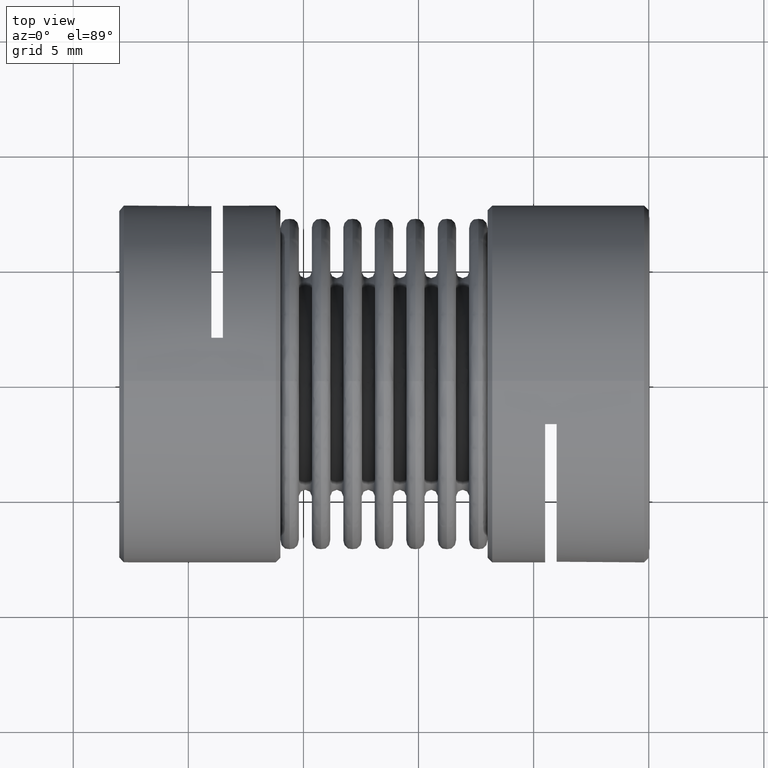
[diagram: clean part render]
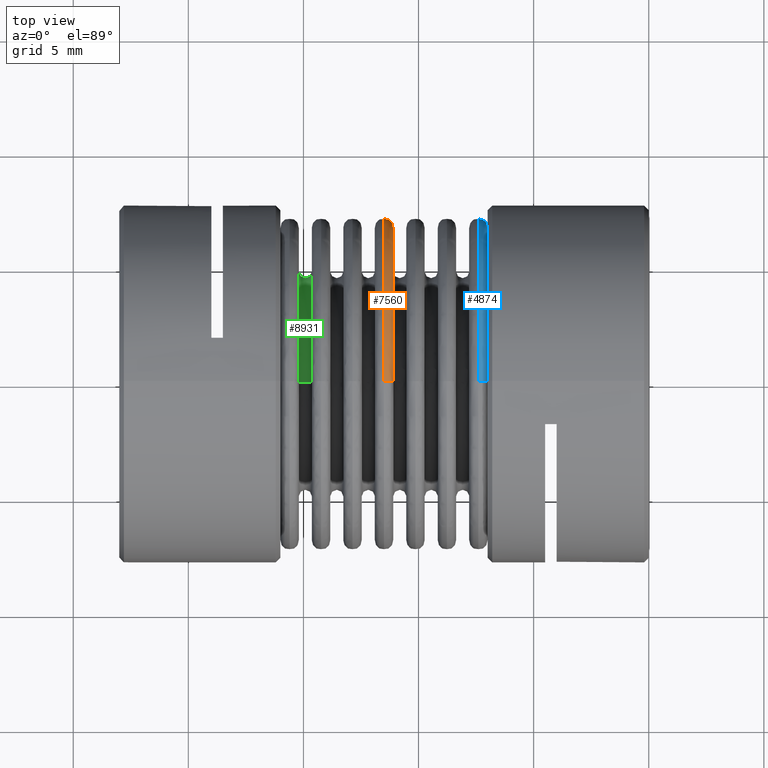
[diagram: same view with three faces highlighted in distinct colors, each labeled with its STEP entity id]
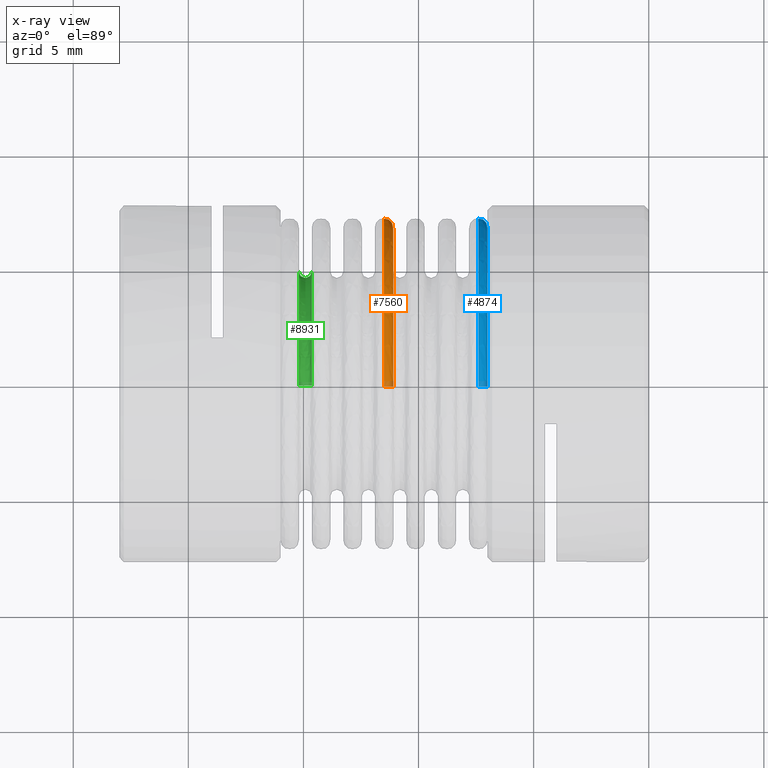
[diagram: x-ray of the same camera — body ghosted, the three highlighted faces saturated]
A machine part, top view with three faces highlighted in distinct colors.
The next image is the same camera in x-ray (body ghosted, the three faces saturated) — at least one of them is partly hidden behind the body in this view.
Their STEP definitions:

[orange] entity #7560 — the highlighted face is a freeform B-spline surface patch.
#38 = CARTESIAN_POINT ( 'NONE',  ( -0.4527539370078742520, -1.256644613389574834E-17, 7.020860603768392969E-18 ) ) ;
#329 = CARTESIAN_POINT ( 'NONE',  ( -0.4527539370078742520, -3.361956691537132732E-17, 0.2834645669262251810 ) ) ;
#712 = CARTESIAN_POINT ( 'NONE',  ( -0.4527539370078742520, 4.010287664571146475E-17, -0.2677165354301622169 ) ) ;
#763 = ORIENTED_EDGE ( 'NONE', *, *, #789, .T. ) ;
#789 = EDGE_CURVE ( 'NONE', #19010, #1057, #12129, .T. ) ;
#1057 = VERTEX_POINT ( 'NONE', #20221 ) ;
#1466 = EDGE_LOOP ( 'NONE', ( #14479, #1827, #11078, #763 ) ) ;
#1581 = CARTESIAN_POINT ( 'NONE',  ( -0.4370059055118112878, 4.053997232484080107E-17, -0.2677165354308893574 ) ) ;
#1827 = ORIENTED_EDGE ( 'NONE', *, *, #10801, .F. ) ;
#1831 = VERTEX_POINT ( 'NONE', #11643 ) ;
#1894 = CARTESIAN_POINT ( 'NONE',  ( -0.4527539370078742520, 0.5669291338524502510, -0.2834645669262251255 ) ) ;
#2006 = CARTESIAN_POINT ( 'NONE',  ( -0.4370059055118112878, -3.201285341525557003E-17, 0.2677165354311802359 ) ) ;
#3281 = DIRECTION ( 'NONE',  ( 0.0000000000000000000, -7.427073164652319051E-17, 1.000000000000000000 ) ) ;
#3537 = VERTEX_POINT ( 'NONE', #15171 ) ;
#3851 = DIRECTION ( 'NONE',  ( 0.0000000000000000000, 1.967354115612585605E-16, -1.000000000000000000 ) ) ;
#3882 = AXIS2_PLACEMENT_3D ( 'NONE', #10762, #9279, #17191 ) ;
#4071 = CIRCLE ( 'NONE', #13134, 0.2834645669262251810 ) ;
#4860 = DIRECTION ( 'NONE',  ( -1.000000000000000000, -2.775557561562892584E-17, 1.550701171185240690E-17 ) ) ;
#5048 = CARTESIAN_POINT ( 'NONE',  ( -0.4370059055122372249, 4.235485320497565093E-17, -0.2769415187002666756 ) ) ;
#5485 = EDGE_CURVE ( 'NONE', #3537, #1057, #14724, .T. ) ;
#6617 = CARTESIAN_POINT ( 'NONE',  ( -0.4435289537384969338, 4.345711682405517448E-17, -0.2834645669262251810 ) ) ;
#7560 = ADVANCED_FACE ( 'NONE', ( #17368 ), #17556, .T. ) ;
#7985 = CARTESIAN_POINT ( 'NONE',  ( -0.4370059055118112878, 0.5354330708617786039, -0.2677165354308893019 ) ) ;
#7991 = CARTESIAN_POINT ( 'NONE',  ( -0.4370059055118112878, -3.201285341525557003E-17, 0.2677165354311802359 ) ) ;
#8089 = CARTESIAN_POINT ( 'NONE',  ( -0.4435289537384969338, 0.5669291338524503621, -0.2834645669262251255 ) ) ;
#8203 = AXIS2_PLACEMENT_3D ( 'NONE', #712, #13534, #3851 ) ;
#9279 = DIRECTION ( 'NONE',  ( -2.775557561562892584E-17, 1.000000000000000000, 7.427073164652317819E-17 ) ) ;
#9566 = CARTESIAN_POINT ( 'NONE',  ( -0.4370059055118112878, 0.5354330708617787149, -0.2677165354308892464 ) ) ;
#9716 = EDGE_CURVE ( 'NONE', #1831, #19010, #14964, .T. ) ;
#10762 = CARTESIAN_POINT ( 'NONE',  ( -0.4527539370078742520, -3.244994909416624397E-17, 0.2677165354301622169 ) ) ;
#10801 = EDGE_CURVE ( 'NONE', #1831, #3537, #4071, .T. ) ;
#11078 = ORIENTED_EDGE ( 'NONE', *, *, #9716, .T. ) ;
#11643 = CARTESIAN_POINT ( 'NONE',  ( -0.4527539370078742520, -3.361956691537132732E-17, 0.2834645669262251810 ) ) ;
#12129 =( BOUNDED_CURVE ( )  B_SPLINE_CURVE ( 3, ( #7991, #17677, #9566, #14402 ),
 .UNSPECIFIED., .F., .F. ) 
 B_SPLINE_CURVE_WITH_KNOTS ( ( 4, 4 ),
 ( 0.0000000000000000000, 1.000000000000000000 ),
 .UNSPECIFIED. ) 
 CURVE ( )  GEOMETRIC_REPRESENTATION_ITEM ( )  RATIONAL_B_SPLINE_CURVE ( ( 1.000000000000000000, 0.3333333333333333703, 0.3333333333333333703, 1.000000000000000000 ) ) 
 REPRESENTATION_ITEM ( '' )  );
#12927 = CARTESIAN_POINT ( 'NONE',  ( -0.4370059055118112878, 0.5354330708617786039, 0.2677165354308894130 ) ) ;
#13039 = CARTESIAN_POINT ( 'NONE',  ( -0.4527539370078742520, 4.320107210336906532E-17, -0.2834645669262251810 ) ) ;
#13134 = AXIS2_PLACEMENT_3D ( 'NONE', #38, #4860, #3281 ) ;
#13534 = DIRECTION ( 'NONE',  ( 2.775557561562892584E-17, -1.000000000000000000, -1.967354115612584866E-16 ) ) ;
#14397 = CARTESIAN_POINT ( 'NONE',  ( -0.4370059055122372249, 0.5538830374005333512, 0.2769415187002667866 ) ) ;
#14402 = CARTESIAN_POINT ( 'NONE',  ( -0.4370059055118112878, 4.108488436541340694E-17, -0.2677165354311802359 ) ) ;
#14479 = ORIENTED_EDGE ( 'NONE', *, *, #5485, .F. ) ;
#14504 = CARTESIAN_POINT ( 'NONE',  ( -0.4370059055122372249, 0.5538830374005333512, -0.2769415187002666201 ) ) ;
#14613 = CARTESIAN_POINT ( 'NONE',  ( -0.4435289537384969338, 0.5669291338524502510, 0.2834645669262252365 ) ) ;
#14724 = CIRCLE ( 'NONE', #8203, 0.01574803149606296415 ) ;
#14964 = CIRCLE ( 'NONE', #3882, 0.01574803149606296415 ) ;
#15171 = CARTESIAN_POINT ( 'NONE',  ( -0.4527539370078742520, 4.320107210336906532E-17, -0.2834645669262251810 ) ) ;
#16202 = CARTESIAN_POINT ( 'NONE',  ( -0.4370059055118112878, -3.201285341523396880E-17, 0.2677165354308893574 ) ) ;
#17191 = DIRECTION ( 'NONE',  ( 0.0000000000000000000, -7.427073164652321516E-17, 1.000000000000000000 ) ) ;
#17368 = FACE_OUTER_BOUND ( 'NONE', #1466, .T. ) ;
#17556 =( BOUNDED_SURFACE ( )  B_SPLINE_SURFACE ( 3, 3, ( 
 ( #329, #17884, #1894, #13039 ),
 ( #17673, #14613, #8089, #6617 ),
 ( #19446, #14397, #14504, #5048 ),
 ( #16202, #12927, #7985, #1581 ) ),
 .UNSPECIFIED., .F., .F., .F. ) 
 B_SPLINE_SURFACE_WITH_KNOTS ( ( 4, 4 ),
 ( 4, 4 ),
 ( 0.0000000000000000000, 1.000000000000000000 ),
 ( 0.0000000000000000000, 1.000000000000000000 ),
 .UNSPECIFIED. ) 
 GEOMETRIC_REPRESENTATION_ITEM ( )  RATIONAL_B_SPLINE_SURFACE ( (
 ( 1.000000000000000000, 0.3333333333333334259, 0.3333333333333334259, 1.000000000000000000),
 ( 0.8047378541352483428, 0.2682459513784161698, 0.2682459513784161698, 0.8047378541352483428),
 ( 0.8047378541352483428, 0.2682459513784161698, 0.2682459513784161698, 0.8047378541352483428),
 ( 1.000000000000000000, 0.3333333333333334259, 0.3333333333333334259, 1.000000000000000000) ) ) 
 REPRESENTATION_ITEM ( '' )  SURFACE ( )  );
#17673 = CARTESIAN_POINT ( 'NONE',  ( -0.4435289537384969338, -3.336352219468521816E-17, 0.2834645669262251810 ) ) ;
#17677 = CARTESIAN_POINT ( 'NONE',  ( -0.4370059055118112878, 0.5354330708617787149, 0.2677165354308894130 ) ) ;
#17884 = CARTESIAN_POINT ( 'NONE',  ( -0.4527539370078742520, 0.5669291338524502510, 0.2834645669262252365 ) ) ;
#19010 = VERTEX_POINT ( 'NONE', #2006 ) ;
#19446 = CARTESIAN_POINT ( 'NONE',  ( -0.4370059055122372249, -3.269799967208937698E-17, 0.2769415187002666756 ) ) ;
#20221 = CARTESIAN_POINT ( 'NONE',  ( -0.4370059055118112878, 4.108488436541340694E-17, -0.2677165354311802359 ) ) ;

[blue] entity #4874 — the highlighted face is a freeform B-spline surface patch.
#388 = DIRECTION ( 'NONE',  ( 0.0000000000000000000, -7.427073164652328912E-17, 1.000000000000000000 ) ) ;
#480 = ORIENTED_EDGE ( 'NONE', *, *, #17599, .T. ) ;
#952 = CARTESIAN_POINT ( 'NONE',  ( -0.2913385826771653364, 0.5669291338555975113, -0.2834645669277987001 ) ) ;
#1149 = CARTESIAN_POINT ( 'NONE',  ( -0.2755905511811023723, 0.5354330708641389380, -0.2677165354320694135 ) ) ;
#2429 = CARTESIAN_POINT ( 'NONE',  ( -0.2755905511811023723, 0.5354330708641390490, -0.2677165354320694135 ) ) ;
#4409 = CARTESIAN_POINT ( 'NONE',  ( -0.2755905511812978825, 0.5538830374032590598, -0.2769415187016294744 ) ) ;
#4513 = CARTESIAN_POINT ( 'NONE',  ( -0.2755905511812979380, -2.821782359953467674E-17, 0.2769415187016295299 ) ) ;
#4589 =( BOUNDED_CURVE ( )  B_SPLINE_CURVE ( 3, ( #20090, #10620, #2429, #16939 ),
 .UNSPECIFIED., .F., .F. ) 
 B_SPLINE_CURVE_WITH_KNOTS ( ( 4, 4 ),
 ( 0.0000000000000000000, 1.000000000000000000 ),
 .UNSPECIFIED. ) 
 CURVE ( )  GEOMETRIC_REPRESENTATION_ITEM ( )  RATIONAL_B_SPLINE_CURVE ( ( 1.000000000000000000, 0.3333333333333333703, 0.3333333333333333703, 1.000000000000000000 ) ) 
 REPRESENTATION_ITEM ( '' )  );
#4720 = CIRCLE ( 'NONE', #9055, 0.2834645669277987556 ) ;
#4721 = AXIS2_PLACEMENT_3D ( 'NONE', #19140, #11363, #20718 ) ;
#4741 = VERTEX_POINT ( 'NONE', #9989 ) ;
#4874 = ADVANCED_FACE ( 'NONE', ( #18407 ), #16172, .T. ) ;
#6675 = CARTESIAN_POINT ( 'NONE',  ( -0.2913385826771653919, -2.796977302163358870E-17, 0.2677165354317357915 ) ) ;
#6919 = VERTEX_POINT ( 'NONE', #19185 ) ;
#7664 = CARTESIAN_POINT ( 'NONE',  ( -0.2755905511811023723, -2.753267734267209178E-17, 0.2677165354320695245 ) ) ;
#7764 = CARTESIAN_POINT ( 'NONE',  ( -0.2821135994076053310, 0.5669291338555974002, -0.2834645669277987001 ) ) ;
#8038 = DIRECTION ( 'NONE',  ( -2.775557561562892584E-17, 1.000000000000000000, 7.427073164652317819E-17 ) ) ;
#8353 = CARTESIAN_POINT ( 'NONE',  ( -0.2913385826771653919, -2.913939084283867205E-17, 0.2834645669277987556 ) ) ;
#9055 = AXIS2_PLACEMENT_3D ( 'NONE', #19197, #12680, #16260 ) ;
#9875 = EDGE_CURVE ( 'NONE', #4741, #13712, #18488, .T. ) ;
#9989 = CARTESIAN_POINT ( 'NONE',  ( -0.2913385826771653919, 4.768124817632818002E-17, -0.2834645669277987556 ) ) ;
#10518 = CARTESIAN_POINT ( 'NONE',  ( -0.2913385826771653919, 4.768124817632818002E-17, -0.2834645669277987556 ) ) ;
#10620 = CARTESIAN_POINT ( 'NONE',  ( -0.2755905511811023723, 0.5354330708641390490, 0.2677165354320695800 ) ) ;
#11130 = CARTESIAN_POINT ( 'NONE',  ( -0.2755905511811023723, 0.5354330708641389380, 0.2677165354320695800 ) ) ;
#11363 = DIRECTION ( 'NONE',  ( 2.775557561562892584E-17, -1.000000000000000000, -1.967354115612584866E-16 ) ) ;
#12197 = CARTESIAN_POINT ( 'NONE',  ( -0.2913385826771653919, -2.913939084283867822E-17, 0.2834645669277987556 ) ) ;
#12399 = CARTESIAN_POINT ( 'NONE',  ( -0.2755905511811023723, 4.502014839772250264E-17, -0.2677165354320695245 ) ) ;
#12680 = DIRECTION ( 'NONE',  ( -1.000000000000000000, -2.775557561562892584E-17, 1.550701171185240690E-17 ) ) ;
#13159 = EDGE_LOOP ( 'NONE', ( #19562, #17186, #480, #14612 ) ) ;
#13230 = AXIS2_PLACEMENT_3D ( 'NONE', #6675, #8038, #388 ) ;
#13712 = VERTEX_POINT ( 'NONE', #20791 ) ;
#13876 = CARTESIAN_POINT ( 'NONE',  ( -0.2913385826771653364, 0.5669291338555974002, 0.2834645669277988111 ) ) ;
#14380 = CARTESIAN_POINT ( 'NONE',  ( -0.2755905511812978825, 0.5538830374032589487, 0.2769415187016295854 ) ) ;
#14612 = ORIENTED_EDGE ( 'NONE', *, *, #16601, .T. ) ;
#14943 = EDGE_CURVE ( 'NONE', #18310, #4741, #4720, .T. ) ;
#15563 = CARTESIAN_POINT ( 'NONE',  ( -0.2821135994076053310, 0.5669291338555974002, 0.2834645669277987556 ) ) ;
#15968 = CARTESIAN_POINT ( 'NONE',  ( -0.2755905511812979380, 4.683502927789970447E-17, -0.2769415187016295299 ) ) ;
#16172 =( BOUNDED_SURFACE ( )  B_SPLINE_SURFACE ( 3, 3, ( 
 ( #12197, #13876, #952, #10518 ),
 ( #16928, #15563, #7764, #17549 ),
 ( #4513, #14380, #4409, #15968 ),
 ( #7664, #11130, #1149, #12399 ) ),
 .UNSPECIFIED., .F., .F., .F. ) 
 B_SPLINE_SURFACE_WITH_KNOTS ( ( 4, 4 ),
 ( 4, 4 ),
 ( 0.0000000000000000000, 1.000000000000000000 ),
 ( 0.0000000000000000000, 1.000000000000000000 ),
 .UNSPECIFIED. ) 
 GEOMETRIC_REPRESENTATION_ITEM ( )  RATIONAL_B_SPLINE_SURFACE ( (
 ( 1.000000000000000000, 0.3333333333333334259, 0.3333333333333334259, 1.000000000000000000),
 ( 0.8047378541293603860, 0.2682459513764535175, 0.2682459513764535175, 0.8047378541293603860),
 ( 0.8047378541293603860, 0.2682459513764535175, 0.2682459513764535175, 0.8047378541293603860),
 ( 1.000000000000000000, 0.3333333333333334259, 0.3333333333333334259, 1.000000000000000000) ) ) 
 REPRESENTATION_ITEM ( '' )  SURFACE ( )  );
#16260 = DIRECTION ( 'NONE',  ( 0.0000000000000000000, -7.427073164652319051E-17, 1.000000000000000000 ) ) ;
#16601 = EDGE_CURVE ( 'NONE', #6919, #13712, #4589, .T. ) ;
#16928 = CARTESIAN_POINT ( 'NONE',  ( -0.2821135994076053310, -2.888334612214749692E-17, 0.2834645669277987556 ) ) ;
#16939 = CARTESIAN_POINT ( 'NONE',  ( -0.2755905511811024278, 4.556506043822560863E-17, -0.2677165354322030288 ) ) ;
#17186 = ORIENTED_EDGE ( 'NONE', *, *, #14943, .F. ) ;
#17549 = CARTESIAN_POINT ( 'NONE',  ( -0.2821135994076053310, 4.793729289701935515E-17, -0.2834645669277987556 ) ) ;
#17578 = CIRCLE ( 'NONE', #13230, 0.01574803149606299885 ) ;
#17599 = EDGE_CURVE ( 'NONE', #18310, #6919, #17578, .T. ) ;
#18310 = VERTEX_POINT ( 'NONE', #8353 ) ;
#18407 = FACE_OUTER_BOUND ( 'NONE', #13159, .T. ) ;
#18488 = CIRCLE ( 'NONE', #4721, 0.01574803149606299885 ) ;
#19140 = CARTESIAN_POINT ( 'NONE',  ( -0.2913385826771653919, 4.458305271867056097E-17, -0.2677165354317357915 ) ) ;
#19185 = CARTESIAN_POINT ( 'NONE',  ( -0.2755905511811024278, -2.753267734268201109E-17, 0.2677165354322030288 ) ) ;
#19197 = CARTESIAN_POINT ( 'NONE',  ( -0.2913385826771653919, -8.086270061246223022E-18, 4.517790813689283991E-18 ) ) ;
#19562 = ORIENTED_EDGE ( 'NONE', *, *, #9875, .F. ) ;
#20090 = CARTESIAN_POINT ( 'NONE',  ( -0.2755905511811024278, -2.753267734268201109E-17, 0.2677165354322030288 ) ) ;
#20718 = DIRECTION ( 'NONE',  ( 0.0000000000000000000, 1.967354115612586345E-16, -1.000000000000000000 ) ) ;
#20791 = CARTESIAN_POINT ( 'NONE',  ( -0.2755905511811024278, 4.556506043822560863E-17, -0.2677165354322030288 ) ) ;

[green] entity #8931 — the highlighted face is a freeform B-spline surface patch.
#128 = CARTESIAN_POINT ( 'NONE',  ( -0.5984212598425201479, 2.543623915851817356E-17, -0.1921259842534223106 ) ) ;
#141 = DIRECTION ( 'NONE',  ( 0.0000000000000000000, -7.427073164652317819E-17, 1.000000000000000000 ) ) ;
#199 = CARTESIAN_POINT ( 'NONE',  ( -0.5984212598425201479, 0.1921286409043536370, 0.02444492668945559555 ) ) ;
#309 = CARTESIAN_POINT ( 'NONE',  ( -0.5984212598425200369, 0.1452432953142502869, -0.1264659492627812076 ) ) ;
#460 = CARTESIAN_POINT ( 'NONE',  ( -0.5761100660481226488, 2.052214571977433218E-17, -0.1855914597740270788 ) ) ;
#725 = CARTESIAN_POINT ( 'NONE',  ( -0.5984212598425201479, 0.07143064792771706972, -0.1783554614099853441 ) ) ;
#777 = ORIENTED_EDGE ( 'NONE', *, *, #10823, .T. ) ;
#1348 = CARTESIAN_POINT ( 'NONE',  ( -0.5984212598425201479, 0.1023550898888734989, 0.1626252964624068653 ) ) ;
#1460 = CARTESIAN_POINT ( 'NONE',  ( -0.5984212598425200369, 0.04109330098983095259, 0.1877828105890530785 ) ) ;
#1560 = CARTESIAN_POINT ( 'NONE',  ( -0.5984212598425201479, 0.1590306142493665142, 0.1078533933103153208 ) ) ;
#1658 = CARTESIAN_POINT ( 'NONE',  ( -0.5984212598425201479, 0.1742040090072121961, 0.08114487583602819631 ) ) ;
#1764 = CARTESIAN_POINT ( 'NONE',  ( -0.5984212598425200369, 0.1783553784820289256, 0.07143085746223509780 ) ) ;
#1918 = CARTESIAN_POINT ( 'NONE',  ( -0.5872656027779200594, -2.974070423923295829E-17, 0.1809704724445339030 ) ) ;
#2018 = CARTESIAN_POINT ( 'NONE',  ( -0.5984212598417458784, -3.039351845595741063E-17, 0.1855911692646584066 ) ) ;
#2084 = CARTESIAN_POINT ( 'NONE',  ( -0.5984212598425201479, 0.04799769260612486710, -0.1876294869983335667 ) ) ;
#2286 = CARTESIAN_POINT ( 'NONE',  ( -0.5984212598425202589, 0.1106253315972563211, -0.1571172400833270033 ) ) ;
#2336 = CARTESIAN_POINT ( 'NONE',  ( -0.5761102362242555008, 0.3842525495208859443, 0.1921262747604430277 ) ) ;
#2413 = VERTEX_POINT ( 'NONE', #4887 ) ;
#2849 = VERTEX_POINT ( 'NONE', #8184 ) ;
#2925 = CARTESIAN_POINT ( 'NONE',  ( -0.5984212598425200369, 0.01465854749580907876, 0.1917250501876739122 ) ) ;
#3133 = CARTESIAN_POINT ( 'NONE',  ( -0.5984212598425200369, 0.005879182101735478706, 0.1921259842532901663 ) ) ;
#3236 = CARTESIAN_POINT ( 'NONE',  ( -0.5984212598425201479, 0.05016349480436498032, 0.1856457823295803999 ) ) ;
#3342 = CARTESIAN_POINT ( 'NONE',  ( -0.5984212598425201479, 0.1162457027514933877, 0.1535417461901795178 ) ) ;
#3449 = CARTESIAN_POINT ( 'NONE',  ( -0.5984212598425201479, 0.07372429328402572979, -0.1774203099884093249 ) ) ;
#3579 = ORIENTED_EDGE ( 'NONE', *, *, #13736, .F. ) ;
#3706 = CARTESIAN_POINT ( 'NONE',  ( -0.5761102362242555008, -3.025963021943920945E-17, 0.1921262747604429999 ) ) ;
#3831 = AXIS2_PLACEMENT_3D ( 'NONE', #15616, #14332, #7720 ) ;
#3868 = CARTESIAN_POINT ( 'NONE',  ( -0.5984212598425201479, 0.02442417314861940539, -0.1921259842532901663 ) ) ;
#3872 = CARTESIAN_POINT ( 'NONE',  ( -0.5872657480314964484, 2.149808570798584756E-17, -0.1921259842546118035 ) ) ;
#3985 = EDGE_CURVE ( 'NONE', #2849, #13688, #20503, .T. ) ;
#4610 = CARTESIAN_POINT ( 'NONE',  ( -0.5984212598425200369, 0.03351589635827701558, 0.1891816247089206926 ) ) ;
#4711 = CARTESIAN_POINT ( 'NONE',  ( -0.5984212598425201479, 0.09408497250623146235, 0.1675463575851485198 ) ) ;
#4887 = CARTESIAN_POINT ( 'NONE',  ( -0.5984212598425201479, -3.087886394636905917E-17, 0.1921259842534223106 ) ) ;
#4921 = CARTESIAN_POINT ( 'NONE',  ( -0.5984212598425200369, 0.02483217687813475683, 0.1905556591629598284 ) ) ;
#5025 = CARTESIAN_POINT ( 'NONE',  ( -0.5984212598425199259, 0.1405474048288210265, 0.1311587318033027028 ) ) ;
#5130 = CARTESIAN_POINT ( 'NONE',  ( -0.5984212598425201479, 0.08114487583582641328, -0.1742040090080251291 ) ) ;
#5240 = CARTESIAN_POINT ( 'NONE',  ( -0.5984212598425200369, 0.1791940000874470140, -0.06930082537488402306 ) ) ;
#5344 = CARTESIAN_POINT ( 'NONE',  ( -0.5984212598425201479, 0.1535417461896229074, -0.1162457027517996011 ) ) ;
#5389 = CARTESIAN_POINT ( 'NONE',  ( -0.5807307877898422177, 0.3619411150659747611, -0.1809705575329873528 ) ) ;
#5427 = AXIS2_PLACEMENT_3D ( 'NONE', #19360, #12740, #141 ) ;
#5975 = CARTESIAN_POINT ( 'NONE',  ( -0.5761102362242555008, -1.599027122446016532E-17, 8.933748180447585774E-18 ) ) ;
#6119 = ORIENTED_EDGE ( 'NONE', *, *, #14791, .T. ) ;
#6181 = CARTESIAN_POINT ( 'NONE',  ( -0.5984212598425201479, 0.06782175513058175120, 0.1797642502691521038 ) ) ;
#6380 = CARTESIAN_POINT ( 'NONE',  ( -0.5984212598425201479, 0.06051786683832788977, 0.1823939987301325671 ) ) ;
#6456 = DIRECTION ( 'NONE',  ( -1.000000000000000000, -2.775557561562892584E-17, 1.550701171185240690E-17 ) ) ;
#6591 = CARTESIAN_POINT ( 'NONE',  ( -0.5984212598425200369, 0.1921246559257759334, -0.01222246334472777175 ) ) ;
#6861 = CARTESIAN_POINT ( 'NONE',  ( -0.5761100660481226488, 0.3711829195480541577, 0.1855914597740271343 ) ) ;
#6920 = CARTESIAN_POINT ( 'NONE',  ( -0.5984212598425200369, 0.1237975441944425825, -0.1471871437334757726 ) ) ;
#6968 = CARTESIAN_POINT ( 'NONE',  ( -0.5938004177659976790, -2.992207547118699185E-17, 0.1809703873560803977 ) ) ;
#7026 = CARTESIAN_POINT ( 'NONE',  ( -0.5984212598425201479, 0.09131099772976714046, -0.1692599772211377807 ) ) ;
#7075 = CARTESIAN_POINT ( 'NONE',  ( -0.5807307877898422177, 1.948479982389797612E-17, -0.1809705575329874083 ) ) ;
#7137 = CARTESIAN_POINT ( 'NONE',  ( -0.5984212598425201479, 2.543623915851817356E-17, -0.1921259842534223106 ) ) ;
#7181 = CARTESIAN_POINT ( 'NONE',  ( -0.5872656027779200594, 1.930340553245031226E-17, -0.1809704724445338753 ) ) ;
#7720 = DIRECTION ( 'NONE',  ( 0.0000000000000000000, -7.427073164652316586E-17, 1.000000000000000000 ) ) ;
#7760 = CARTESIAN_POINT ( 'NONE',  ( -0.5984212598425201479, 0.1797383421386690994, -0.06787853942628323256 ) ) ;
#7863 = CARTESIAN_POINT ( 'NONE',  ( -0.5984212598425200369, 0.07676337871421114178, 0.1762434554025505140 ) ) ;
#8063 = CARTESIAN_POINT ( 'NONE',  ( -0.5984212598425201479, 0.1764841942857062196, 0.07596499155049633856 ) ) ;
#8164 = CARTESIAN_POINT ( 'NONE',  ( -0.5761102362223641249, 2.180774193592738551E-17, -0.1921261295075273878 ) ) ;
#8184 = CARTESIAN_POINT ( 'NONE',  ( -0.5761102362242555008, 0.1921262747604429999, 2.601017919144714925E-17 ) ) ;
#8315 = CARTESIAN_POINT ( 'NONE',  ( -0.5872656027779200594, 0.3619409448890677505, 0.1809704724445339308 ) ) ;
#8415 = CARTESIAN_POINT ( 'NONE',  ( -0.5984212598425200369, 0.3842519685065802770, 0.1921259842532901940 ) ) ;
#8578 = CARTESIAN_POINT ( 'NONE',  ( -0.5984212598425201479, 0.07222588380464699254, -0.1780352523318052271 ) ) ;
#8689 = CARTESIAN_POINT ( 'NONE',  ( -0.5984212598425200369, 0.1789356221233118216, -0.06996520582989822212 ) ) ;
#8931 = ADVANCED_FACE ( 'NONE', ( #11492 ), #15722, .F. ) ;
#9328 = CARTESIAN_POINT ( 'NONE',  ( -0.5984212598425200369, 0.1823240083921674193, -0.06074072919090661715 ) ) ;
#9410 = ORIENTED_EDGE ( 'NONE', *, *, #18504, .F. ) ;
#9535 = CARTESIAN_POINT ( 'NONE',  ( -0.5984212598425199259, 0.1471871437329886900, 0.1237975441947741922 ) ) ;
#9748 = CARTESIAN_POINT ( 'NONE',  ( -0.5984212598425200369, 0.1774203099875773515, 0.07372429328415448790 ) ) ;
#9858 = CARTESIAN_POINT ( 'NONE',  ( -0.5984212598425201479, 0.1159579978066977990, -0.1532253993191882990 ) ) ;
#9960 = CARTESIAN_POINT ( 'NONE',  ( -0.5984212598425199259, 0.1675463575844932662, -0.09408497250637898324 ) ) ;
#10010 = CARTESIAN_POINT ( 'NONE',  ( -0.5938004177659976790, 1.912201124100265149E-17, -0.1809703873560803422 ) ) ;
#10219 = CARTESIAN_POINT ( 'NONE',  ( -0.5984212598425200369, -3.087886394635924771E-17, 0.1921259842532901663 ) ) ;
#10283 = CARTESIAN_POINT ( 'NONE',  ( -0.5984212598425200369, 0.07596499155034285022, -0.1764841942865342794 ) ) ;
#10330 = CARTESIAN_POINT ( 'NONE',  ( -0.5938004177659977900, 0.3619407747121606844, 0.1809703873560804255 ) ) ;
#10823 = EDGE_CURVE ( 'NONE', #14649, #2849, #18179, .T. ) ;
#11091 = AXIS2_PLACEMENT_3D ( 'NONE', #3872, #16703, #16806 ) ;
#11224 = CARTESIAN_POINT ( 'NONE',  ( -0.5984212598425199259, 0.02990175067494082323, 0.1897955549968956268 ) ) ;
#11336 = CARTESIAN_POINT ( 'NONE',  ( -0.5984212598425198149, 0.03419314673621891981, 0.1890604743707733348 ) ) ;
#11446 = CARTESIAN_POINT ( 'NONE',  ( -0.5984212598425200369, 0.1855200104808613359, -0.05066558984321210130 ) ) ;
#11453 = AXIS2_PLACEMENT_3D ( 'NONE', #5975, #6456, #12186 ) ;
#11492 = FACE_OUTER_BOUND ( 'NONE', #14531, .T. ) ;
#11599 = CARTESIAN_POINT ( 'NONE',  ( -0.5761100660481226488, -2.977428000588691234E-17, 0.1855914597740271066 ) ) ;
#11652 = CARTESIAN_POINT ( 'NONE',  ( -0.5984212598425200369, 0.1626252964617979357, -0.1023550898890661365 ) ) ;
#11811 = CARTESIAN_POINT ( 'NONE',  ( -0.5872656027779200594, 0.3619409448890676950, -0.1809704724445338198 ) ) ;
#11866 = CARTESIAN_POINT ( 'NONE',  ( -0.5984212598425199259, 0.1722201893273824502, -0.08559707573170120820 ) ) ;
#12186 = DIRECTION ( 'NONE',  ( 0.0000000000000000000, -7.427073164652317819E-17, 1.000000000000000000 ) ) ;
#12555 = CIRCLE ( 'NONE', #3831, 0.01115551181102358499 ) ;
#12593 = CARTESIAN_POINT ( 'NONE',  ( -0.5984212598425200369, 0.06920985328709380879, 0.1792347517598877338 ) ) ;
#12698 = CARTESIAN_POINT ( 'NONE',  ( -0.5984212598425200369, 0.09966672585760455449, 0.1642858996079686884 ) ) ;
#12740 = DIRECTION ( 'NONE',  ( -1.000000000000000000, -2.775557561562892584E-17, 1.550701171185240690E-17 ) ) ;
#12793 = CARTESIAN_POINT ( 'NONE',  ( -0.5984212598425199259, 0.1532253993186508956, 0.1159579978069831263 ) ) ;
#13015 = CARTESIAN_POINT ( 'NONE',  ( -0.5984212598425201479, 0.03207073068192416165, 0.1894322084999308931 ) ) ;
#13231 = CARTESIAN_POINT ( 'NONE',  ( -0.5984212598425200369, 0.1311587318029350524, -0.1405474048292500999 ) ) ;
#13388 = CARTESIAN_POINT ( 'NONE',  ( -0.5938004177659977900, 0.3619407747121606289, -0.1809703873560802867 ) ) ;
#13676 = ORIENTED_EDGE ( 'NONE', *, *, #3985, .T. ) ;
#13688 = VERTEX_POINT ( 'NONE', #8164 ) ;
#13736 = EDGE_CURVE ( 'NONE', #2413, #18951, #18472, .T. ) ;
#14280 = CARTESIAN_POINT ( 'NONE',  ( -0.5984212598425199259, 0.08559707573159154592, 0.1722201893280906893 ) ) ;
#14332 = DIRECTION ( 'NONE',  ( -2.775557561562892584E-17, 1.000000000000000000, 7.427073164652317819E-17 ) ) ;
#14376 = CARTESIAN_POINT ( 'NONE',  ( -0.5984212598425201479, 0.1643645307233556896, 0.09969285076420822400 ) ) ;
#14531 = EDGE_LOOP ( 'NONE', ( #13676, #6119, #3579, #9410, #777 ) ) ;
#14585 = CARTESIAN_POINT ( 'NONE',  ( -0.5984212598425201479, 0.1876321406653789492, 0.04799098750461072704 ) ) ;
#14649 = VERTEX_POINT ( 'NONE', #16284 ) ;
#14791 = EDGE_CURVE ( 'NONE', #13688, #18951, #19482, .T. ) ;
#14853 = CARTESIAN_POINT ( 'NONE',  ( -0.5984212598425200369, 0.3842519685065802215, -0.1921259842532900552 ) ) ;
#15119 = CARTESIAN_POINT ( 'NONE',  ( -0.5984212598425201479, 0.1078533933101174930, -0.1590306142499273712 ) ) ;
#15616 = CARTESIAN_POINT ( 'NONE',  ( -0.5872657480314964484, -3.056923629485549877E-17, 0.1921259842546118313 ) ) ;
#15722 =( BOUNDED_SURFACE ( )  B_SPLINE_SURFACE ( 3, 3, ( 
 ( #3706, #2336, #19790, #19679 ),
 ( #11599, #6861, #18324, #460 ),
 ( #19895, #16534, #5389, #7075 ),
 ( #1918, #8315, #11811, #7181 ),
 ( #6968, #10330, #13388, #10010 ),
 ( #2018, #19577, #16432, #18012 ),
 ( #10219, #8415, #14853, #18215 ) ),
 .UNSPECIFIED., .F., .F., .F. ) 
 B_SPLINE_SURFACE_WITH_KNOTS ( ( 4, 3, 4 ),
 ( 4, 4 ),
 ( 0.0000000000000000000, 0.5000000000000000000, 1.000000000000000000 ),
 ( 0.0000000000000000000, 1.000000000000000000 ),
 .UNSPECIFIED. ) 
 GEOMETRIC_REPRESENTATION_ITEM ( )  RATIONAL_B_SPLINE_SURFACE ( (
 ( 1.000000000000000000, 0.3333333333333334259, 0.3333333333333334259, 1.000000000000000000),
 ( 0.8047347851126693818, 0.2682449283708898680, 0.2682449283708898680, 0.8047347851126693818),
 ( 0.8047347851126693818, 0.2682449283708898680, 0.2682449283708898680, 0.8047347851126693818),
 ( 1.000000000000000000, 0.3333333333333334259, 0.3333333333333334259, 1.000000000000000000),
 ( 0.8047347851126691598, 0.2682449283708898125, 0.2682449283708898125, 0.8047347851126691598),
 ( 0.8047347851126691598, 0.2682449283708898125, 0.2682449283708898125, 0.8047347851126691598),
 ( 1.000000000000000000, 0.3333333333333334259, 0.3333333333333334259, 1.000000000000000000) ) ) 
 REPRESENTATION_ITEM ( '' )  SURFACE ( )  );
#15759 = CARTESIAN_POINT ( 'NONE',  ( -0.5984212598425201479, 0.1805416896668623206, -0.06574255755250726918 ) ) ;
#15964 = CARTESIAN_POINT ( 'NONE',  ( -0.5984212598425200369, 0.1571172400827578475, 0.1106253315975084806 ) ) ;
#16071 = CARTESIAN_POINT ( 'NONE',  ( -0.5984212598425200369, 0.1692599772203780828, 0.09131099773002929187 ) ) ;
#16178 = CARTESIAN_POINT ( 'NONE',  ( -0.5984212598425201479, 0.1780352523309712554, 0.07222588380475843117 ) ) ;
#16279 = CARTESIAN_POINT ( 'NONE',  ( -0.5984212598425202589, 0.1642858996073449929, -0.09966672585778231508 ) ) ;
#16284 = CARTESIAN_POINT ( 'NONE',  ( -0.5761102362223641249, -3.025961943134639770E-17, 0.1921261295075273878 ) ) ;
#16386 = CARTESIAN_POINT ( 'NONE',  ( -0.5984212598425201479, 0.09969285076395729972, -0.1643645307240294007 ) ) ;
#16432 = CARTESIAN_POINT ( 'NONE',  ( -0.5984212598417458784, 0.3711823385293167576, -0.1855911692646583511 ) ) ;
#16534 = CARTESIAN_POINT ( 'NONE',  ( -0.5807307877898422177, 0.3619411150659747611, 0.1809705575329874361 ) ) ;
#16703 = DIRECTION ( 'NONE',  ( 2.775557561562892584E-17, -1.000000000000000000, -1.967354115612584866E-16 ) ) ;
#16806 = DIRECTION ( 'NONE',  ( 0.0000000000000000000, 1.967354115612584373E-16, -1.000000000000000000 ) ) ;
#17650 = CARTESIAN_POINT ( 'NONE',  ( -0.5984212598425201479, 0.1264659492624783388, 0.1452432953146762795 ) ) ;
#17756 = CARTESIAN_POINT ( 'NONE',  ( -0.5984212598425200369, 0.06490670040652761486, 0.1808378234810698870 ) ) ;
#18012 = CARTESIAN_POINT ( 'NONE',  ( -0.5984212598417458784, 1.990282853988026611E-17, -0.1855911692646584066 ) ) ;
#18179 = CIRCLE ( 'NONE', #5427, 0.1921262747604429999 ) ;
#18215 = CARTESIAN_POINT ( 'NONE',  ( -0.5984212598425200369, 2.118845805612392188E-17, -0.1921259842532901385 ) ) ;
#18324 = CARTESIAN_POINT ( 'NONE',  ( -0.5761100660481226488, 0.3711829195480541022, -0.1855914597740269956 ) ) ;
#18472 = B_SPLINE_CURVE_WITH_KNOTS ( 'NONE', 3,
 ( #19112, #3133, #2925, #4921, #11224, #13015, #4610, #11336, #1460, #3236, #6380, #17756, #6181, #12593, #7863, #14280, #4711, #12698, #1348, #3342, #17650, #5025, #9535, #12793, #15964, #1560, #14376, #16071, #1658, #8063, #9748, #16178, #1764, #14585, #199, #6591, #19423, #11446, #9328, #15759, #7760, #5240, #8689, #19953, #11866, #9960, #16279, #11652, #5344, #309, #13231, #6920, #9858, #2286, #15119, #16386, #7026, #5130, #10283, #3449, #8578, #725, #2084, #3868, #7137 ),
 .UNSPECIFIED., .F., .F.,
 ( 4, 1, 1, 1, 2, 2, 1, 1, 2, 2, 1, 2, 2, 2, 1, 2, 2, 1, 1, 1, 2, 2, 2, 1, 1, 1, 1, 2, 2, 1, 2, 2, 2, 1, 2, 2, 1, 1, 1, 2, 2, 4 ),
 ( 0.0000000000000000000, 0.03124999999999920897, 0.04687499999999880651, 0.05468749999999861222, 0.05859374999999854283, 0.06249999999999847344, 0.09374999999999793221, 0.1093749999999976963, 0.1171874999999975714, 0.1249999999999974465, 0.1562499999999970024, 0.1718749999999968081, 0.1874999999999966138, 0.2499999999999957256, 0.2812499999999952816, 0.2968749999999951150, 0.3124999999999948930, 0.3437499999999944489, 0.3593749999999942824, 0.3671874999999942824, 0.3710937499999942824, 0.3749999999999942824, 0.4999999999999953371, 0.5624999999999958922, 0.5937499999999962252, 0.6093749999999963363, 0.6171874999999963363, 0.6210937499999963363, 0.6249999999999963363, 0.6562499999999965583, 0.6718749999999967804, 0.6874999999999968914, 0.7499999999999976685, 0.7812499999999981126, 0.7968749999999982236, 0.8124999999999985567, 0.8437499999999993339, 0.8593749999999996669, 0.8671874999999997780, 0.8710937499999998890, 0.8750000000000000000, 1.000000000000000000 ),
 .UNSPECIFIED. ) ;
#18504 = EDGE_CURVE ( 'NONE', #14649, #2413, #12555, .T. ) ;
#18951 = VERTEX_POINT ( 'NONE', #128 ) ;
#19112 = CARTESIAN_POINT ( 'NONE',  ( -0.5984212598425201479, -3.087886394636905917E-17, 0.1921259842534223106 ) ) ;
#19360 = CARTESIAN_POINT ( 'NONE',  ( -0.5761102362242555008, -1.599027122446016532E-17, 8.933748180447585774E-18 ) ) ;
#19423 = CARTESIAN_POINT ( 'NONE',  ( -0.5984212598425201479, 0.1904374732105836021, -0.03022938064984981993 ) ) ;
#19482 = CIRCLE ( 'NONE', #11091, 0.01115551181102358499 ) ;
#19577 = CARTESIAN_POINT ( 'NONE',  ( -0.5984212598417458784, 0.3711823385293168132, 0.1855911692646584621 ) ) ;
#19679 = CARTESIAN_POINT ( 'NONE',  ( -0.5761102362242555008, 2.180777051226701989E-17, -0.1921262747604429721 ) ) ;
#19790 = CARTESIAN_POINT ( 'NONE',  ( -0.5761102362242555008, 0.3842525495208858888, -0.1921262747604428889 ) ) ;
#19895 = CARTESIAN_POINT ( 'NONE',  ( -0.5807307877898422177, -2.955933300727891857E-17, 0.1809705575329874638 ) ) ;
#19953 = CARTESIAN_POINT ( 'NONE',  ( -0.5984212598425200369, 0.1762434554017708044, -0.07676337871430476134 ) ) ;
#20503 = CIRCLE ( 'NONE', #11453, 0.1921262747604429999 ) ;